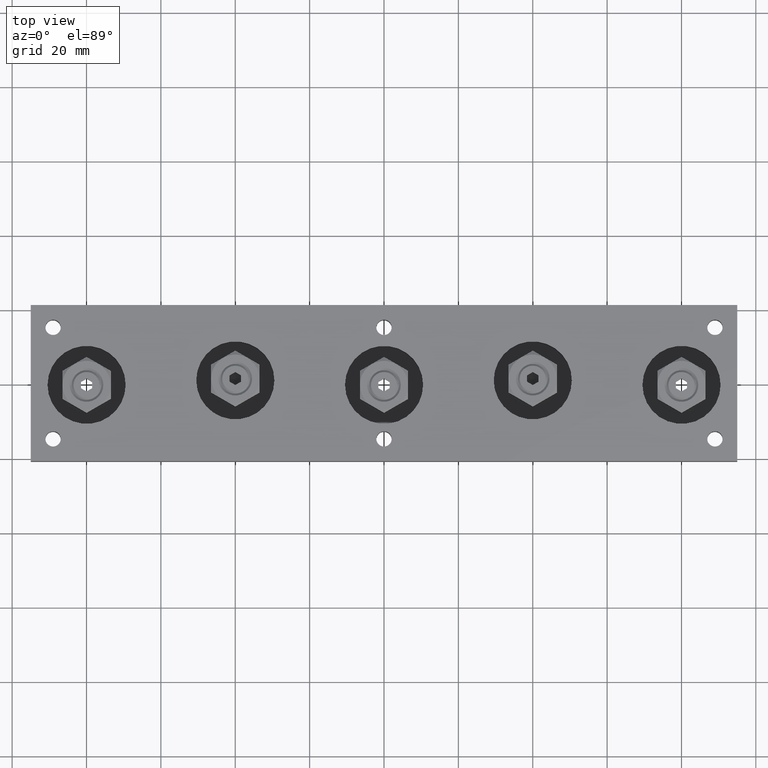
[diagram: clean part render]
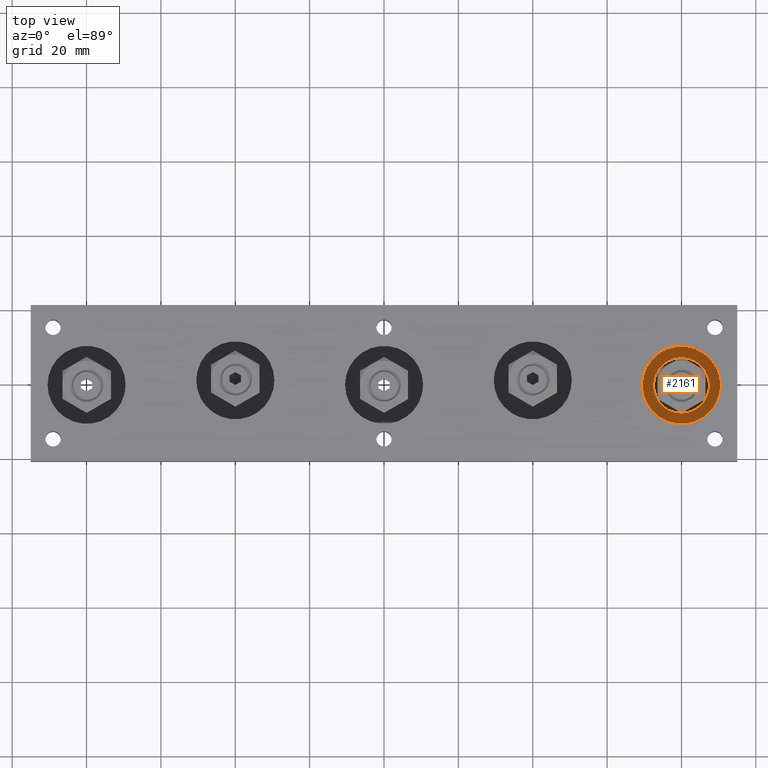
[diagram: same view with one face highlighted and labeled with its STEP entity id]
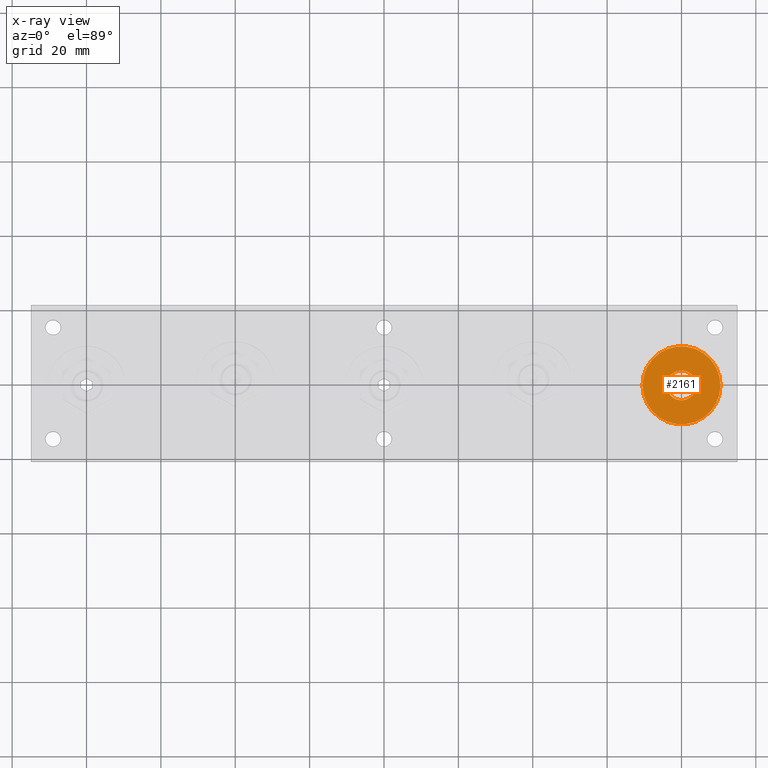
[diagram: x-ray of the same camera — body ghosted, the highlighted face saturated]
A machine part, top view. The second image highlights one B-rep face of the part: STEP entity #2161.
The next image is the same camera in x-ray: the body ghosted, the highlighted face saturated — about 0% of this face is hidden behind the body in this view.
In plain terms, the highlighted planar face has unit normal (0, 0, 1).
Its self-contained STEP definition (entity closure, byte-faithful):
#178=FACE_BOUND('',#432,.T.);
#225=PLANE('',#2528);
#292=FACE_OUTER_BOUND('',#431,.T.);
#431=EDGE_LOOP('',(#1540));
#432=EDGE_LOOP('',(#1541));
#898=CIRCLE('',#2529,10.5);
#899=CIRCLE('',#2530,4.);
#1033=VERTEX_POINT('',#3588);
#1034=VERTEX_POINT('',#3590);
#1233=EDGE_CURVE('',#1033,#1033,#898,.T.);
#1234=EDGE_CURVE('',#1034,#1034,#899,.T.);
#1540=ORIENTED_EDGE('',*,*,#1233,.T.);
#1541=ORIENTED_EDGE('',*,*,#1234,.F.);
#2161=ADVANCED_FACE('',(#292,#178),#225,.T.);
#2528=AXIS2_PLACEMENT_3D('',#3587,#2862,#2863);
#2529=AXIS2_PLACEMENT_3D('',#3589,#2864,#2865);
#2530=AXIS2_PLACEMENT_3D('',#3591,#2866,#2867);
#2862=DIRECTION('center_axis',(0.,0.,1.));
#2863=DIRECTION('ref_axis',(1.,0.,0.));
#2864=DIRECTION('center_axis',(0.,0.,1.));
#2865=DIRECTION('ref_axis',(1.,0.,0.));
#2866=DIRECTION('center_axis',(0.,0.,1.));
#2867=DIRECTION('ref_axis',(1.,0.,0.));
#3587=CARTESIAN_POINT('Origin',(80.,-0.499999999999998,6.2));
#3588=CARTESIAN_POINT('',(69.5,-0.5,6.2));
#3589=CARTESIAN_POINT('Origin',(80.,-0.499999999999998,6.2));
#3590=CARTESIAN_POINT('',(76.,-0.499999999999999,6.19999999999999));
#3591=CARTESIAN_POINT('Origin',(80.,-0.499999999999998,6.19999999999999));